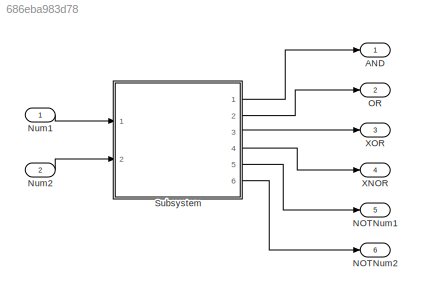
MODEL slx_686eba983d78
KIND model
CONFIG AbsTol = auto
CONFIG EnableMultiTasking = off
CONFIG FixedStep = auto
CONFIG MaxStep = auto
CONFIG MinStep = auto
CONFIG RelTol = 1e-3
CONFIG SampleTimeConstraint = Unconstrained
CONFIG SolverName = VariableStepAuto
CONFIG StartTime = 0.0
CONFIG StopTime = 10.0
BLOCK [Outport] AND
BLOCK [Outport] NOTNum1
  Port = 5
BLOCK [Outport] NOTNum2
  Port = 6
BLOCK [Inport] Num1
BLOCK [Inport] Num2
  Port = 2
BLOCK [Outport] OR
  Port = 2
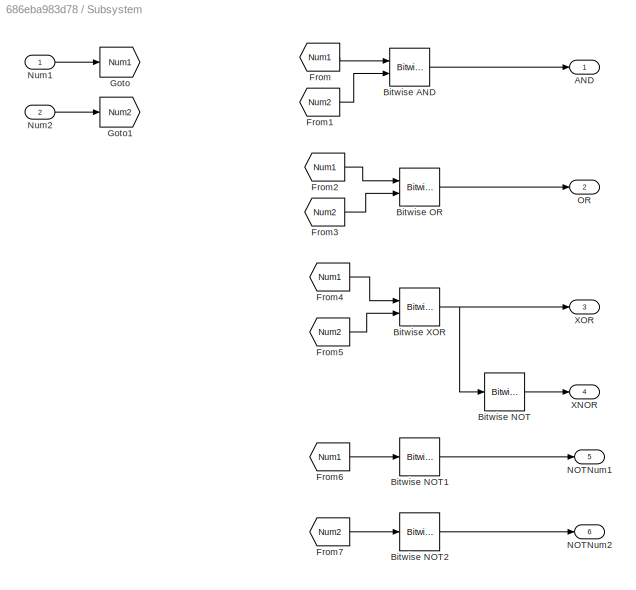
BLOCK [SubSystem] Subsystem
  Ports = [2, 6]
  RequestExecContextInheritance = off
BLOCK [Outport] Subsystem/AND
BLOCK [Reference] Subsystem/Bitwise AND  REF=simulink/Logic and Bit
Operations/Bitwise
Operator
  Ports = [2, 1]
  SourceBlock = simulink/Logic and Bit\nOperations/Bitwise\nOperator
  SourceProductBaseCode = SL
  SourceType = Bitwise Operator
BLOCK [Reference] Subsystem/Bitwise NOT  REF=simulink/Logic and Bit
Operations/Bitwise
Operator
  Ports = [1, 1]
  SourceBlock = simulink/Logic and Bit\nOperations/Bitwise\nOperator
  SourceProductBaseCode = SL
  SourceType = Bitwise Operator
BLOCK [Reference] Subsystem/Bitwise NOT1  REF=simulink/Logic and Bit
Operations/Bitwise
Operator
  Ports = [1, 1]
  SourceBlock = simulink/Logic and Bit\nOperations/Bitwise\nOperator
  SourceProductBaseCode = SL
  SourceType = Bitwise Operator
BLOCK [Reference] Subsystem/Bitwise NOT2  REF=simulink/Logic and Bit
Operations/Bitwise
Operator
  Ports = [1, 1]
  SourceBlock = simulink/Logic and Bit\nOperations/Bitwise\nOperator
  SourceProductBaseCode = SL
  SourceType = Bitwise Operator
BLOCK [Reference] Subsystem/Bitwise OR  REF=simulink/Logic and Bit
Operations/Bitwise
Operator
  Ports = [2, 1]
  SourceBlock = simulink/Logic and Bit\nOperations/Bitwise\nOperator
  SourceProductBaseCode = SL
  SourceType = Bitwise Operator
BLOCK [Reference] Subsystem/Bitwise XOR  REF=simulink/Logic and Bit
Operations/Bitwise
Operator
  Ports = [2, 1]
  SourceBlock = simulink/Logic and Bit\nOperations/Bitwise\nOperator
  SourceProductBaseCode = SL
  SourceType = Bitwise Operator
BLOCK [From] Subsystem/From
  GotoTag = Num1
BLOCK [From] Subsystem/From1
  GotoTag = Num2
BLOCK [From] Subsystem/From2
  GotoTag = Num1
BLOCK [From] Subsystem/From3
  GotoTag = Num2
BLOCK [From] Subsystem/From4
  GotoTag = Num1
BLOCK [From] Subsystem/From5
  GotoTag = Num2
BLOCK [From] Subsystem/From6
  GotoTag = Num1
BLOCK [From] Subsystem/From7
  GotoTag = Num2
BLOCK [Goto] Subsystem/Goto
  GotoTag = Num1
BLOCK [Goto] Subsystem/Goto1
  GotoTag = Num2
BLOCK [Outport] Subsystem/NOTNum1
  Port = 5
BLOCK [Outport] Subsystem/NOTNum2
  Port = 6
BLOCK [Inport] Subsystem/Num1
  OutDataTypeStr = uint8
BLOCK [Inport] Subsystem/Num2
  OutDataTypeStr = uint8
  Port = 2
BLOCK [Outport] Subsystem/OR
  Port = 2
BLOCK [Outport] Subsystem/XNOR
  Port = 4
BLOCK [Outport] Subsystem/XOR
  Port = 3
BLOCK [Outport] XNOR
  Port = 4
BLOCK [Outport] XOR
  Port = 3
LINE Num1:1 -> Subsystem:1
LINE Num2:1 -> Subsystem:2
LINE Subsystem/Bitwise AND:1 -> Subsystem/AND:1
LINE Subsystem/Bitwise NOT1:1 -> Subsystem/NOTNum1:1
LINE Subsystem/Bitwise NOT2:1 -> Subsystem/NOTNum2:1
LINE Subsystem/Bitwise NOT:1 -> Subsystem/XNOR:1
LINE Subsystem/Bitwise OR:1 -> Subsystem/OR:1
NET Subsystem/Bitwise XOR:1 -> Subsystem/Bitwise NOT:1, Subsystem/XOR:1
LINE Subsystem/From1:1 -> Subsystem/Bitwise AND:2
LINE Subsystem/From2:1 -> Subsystem/Bitwise OR:1
LINE Subsystem/From3:1 -> Subsystem/Bitwise OR:2
LINE Subsystem/From4:1 -> Subsystem/Bitwise XOR:1
LINE Subsystem/From5:1 -> Subsystem/Bitwise XOR:2
LINE Subsystem/From6:1 -> Subsystem/Bitwise NOT1:1
LINE Subsystem/From7:1 -> Subsystem/Bitwise NOT2:1
LINE Subsystem/From:1 -> Subsystem/Bitwise AND:1
LINE Subsystem/Num1:1 -> Subsystem/Goto:1
LINE Subsystem/Num2:1 -> Subsystem/Goto1:1
LINE Subsystem:1 -> AND:1
LINE Subsystem:2 -> OR:1
LINE Subsystem:3 -> XOR:1
LINE Subsystem:4 -> XNOR:1
LINE Subsystem:5 -> NOTNum1:1
LINE Subsystem:6 -> NOTNum2:1
note: NET lines group one-source signal fan-out (src -> all destinations, sorted); 1:1 wires keep LINE
